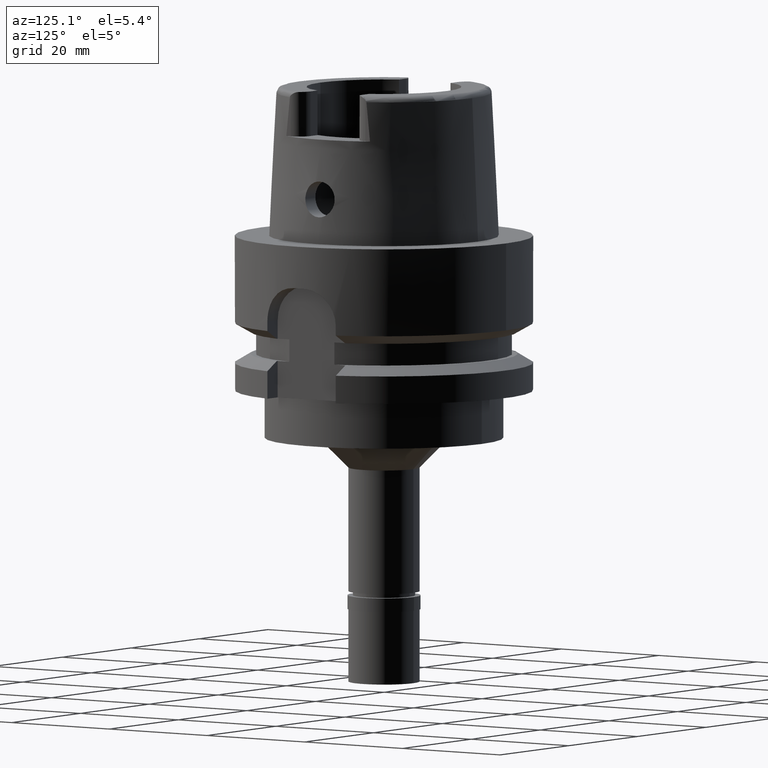
[diagram: clean part render]
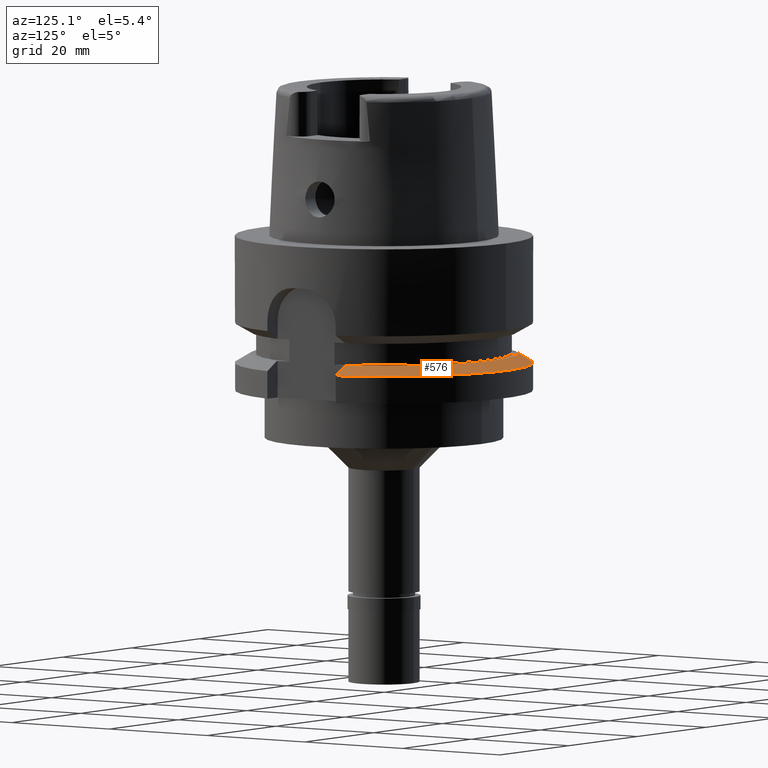
[diagram: same view with one face highlighted and labeled with its STEP entity id]
A machine part, auxiliary view. The second image highlights one B-rep face of the part: STEP entity #576.
In plain terms, the highlighted conical surface has half-angle 60 deg.
Its self-contained STEP definition (entity closure, byte-faithful):
#56 = ORIENTED_EDGE ( 'NONE', *, *, #3997, .F. ) ;
#168 = CARTESIAN_POINT ( 'NONE',  ( -15.49998696071000026, 16.16805732865999801, -19.87500000000000000 ) ) ;
#239 = DIRECTION ( 'NONE',  ( 0.0000000000000000000, 0.0000000000000000000, -1.000000000000000000 ) ) ;
#410 = CARTESIAN_POINT ( 'NONE',  ( 23.99999968298999775, 7.000001086876999956, -21.37750801618000196 ) ) ;
#576 = ADVANCED_FACE ( 'NONE', ( #2078 ), #806, .T. ) ;
#641 = CARTESIAN_POINT ( 'NONE',  ( 21.27562139474999725, 7.000000353478999848, -19.87500000000000000 ) ) ;
#689 = DIRECTION ( 'NONE',  ( 0.0000000000000000000, -1.000000000000000000, 0.0000000000000000000 ) ) ;
#806 = CONICAL_SURFACE ( 'NONE', #3083, 23.69879763209999979, 1.047197551196400456 ) ;
#978 = CARTESIAN_POINT ( 'NONE',  ( 23.99999968298999775, 7.000001086876999956, -21.37750801618000196 ) ) ;
#982 = CARTESIAN_POINT ( 'NONE',  ( 0.0000000000000000000, 0.0000000000000000000, -20.62624953738000144 ) ) ;
#985 = VERTEX_POINT ( 'NONE', #410 ) ;
#1018 = B_SPLINE_CURVE_WITH_KNOTS ( 'NONE', 3,
 ( #168, #4692, #1290, #4590 ),
 .UNSPECIFIED., .F., .F.,
 ( 4, 4 ),
 ( 0.0000000000000000000, 1.000000000000000000 ),
 .UNSPECIFIED. ) ;
#1123 = EDGE_LOOP ( 'NONE', ( #4885, #4242, #1793, #56 ) ) ;
#1290 = CARTESIAN_POINT ( 'NONE',  ( -15.50000000000000000, 18.40098518140533201, -20.82759900369239858 ) ) ;
#1361 = CARTESIAN_POINT ( 'NONE',  ( 23.04351312316537914, 7.000002172663049471, -20.84736059540415454 ) ) ;
#1572 = EDGE_CURVE ( 'NONE', #2498, #2184, #2923, .T. ) ;
#1793 = ORIENTED_EDGE ( 'NONE', *, *, #4021, .T. ) ;
#1801 = DIRECTION ( 'NONE',  ( 0.0000000000000000000, 0.0000000000000000000, -1.000000000000000000 ) ) ;
#1867 = CARTESIAN_POINT ( 'NONE',  ( 0.0000000000000000000, 0.0000000000000000000, -19.87500000000000000 ) ) ;
#1895 = CARTESIAN_POINT ( 'NONE',  ( -15.50001397709000095, 19.61503420108000029, -21.37755022036999719 ) ) ;
#2078 = FACE_OUTER_BOUND ( 'NONE', #1123, .T. ) ;
#2184 = VERTEX_POINT ( 'NONE', #641 ) ;
#2498 = VERTEX_POINT ( 'NONE', #4665 ) ;
#2730 = B_SPLINE_CURVE_WITH_KNOTS ( 'NONE', 3,
 ( #3972, #4761, #1361, #978 ),
 .UNSPECIFIED., .F., .F.,
 ( 4, 4 ),
 ( 0.0000000000000000000, 1.000000000000000000 ),
 .UNSPECIFIED. ) ;
#2923 = CIRCLE ( 'NONE', #4608, 22.39759526418999869 ) ;
#3083 = AXIS2_PLACEMENT_3D ( 'NONE', #982, #1801, #689 ) ;
#3384 = DIRECTION ( 'NONE',  ( 0.0000000000000000000, 0.0000000000000000000, -1.000000000000000000 ) ) ;
#3624 = CARTESIAN_POINT ( 'NONE',  ( 0.0000000000000000000, 0.0000000000000000000, -21.37749907476000288 ) ) ;
#3884 = EDGE_CURVE ( 'NONE', #2498, #4099, #1018, .T. ) ;
#3965 = CIRCLE ( 'NONE', #4114, 24.99999999999999645 ) ;
#3972 = CARTESIAN_POINT ( 'NONE',  ( 21.27562139474999725, 7.000000353478999848, -19.87500000000000000 ) ) ;
#3997 = EDGE_CURVE ( 'NONE', #4099, #985, #3965, .T. ) ;
#4016 = DIRECTION ( 'NONE',  ( -0.6200000000000721601, 0.7846018098372642413, 0.0000000000000000000 ) ) ;
#4021 = EDGE_CURVE ( 'NONE', #2184, #985, #2730, .T. ) ;
#4099 = VERTEX_POINT ( 'NONE', #1895 ) ;
#4114 = AXIS2_PLACEMENT_3D ( 'NONE', #3624, #239, #4016 ) ;
#4242 = ORIENTED_EDGE ( 'NONE', *, *, #1572, .T. ) ;
#4590 = CARTESIAN_POINT ( 'NONE',  ( -15.50001397709000095, 19.61503420108000029, -21.37755022036999719 ) ) ;
#4608 = AXIS2_PLACEMENT_3D ( 'NONE', #1867, #3384, #4808 ) ;
#4665 = CARTESIAN_POINT ( 'NONE',  ( -15.49998696071000026, 16.16805732865999801, -19.87500000000000000 ) ) ;
#4692 = CARTESIAN_POINT ( 'NONE',  ( -15.50000000000000000, 17.25199289059866459, -20.32674893023573404 ) ) ;
#4761 = CARTESIAN_POINT ( 'NONE',  ( 22.13540237080604811, 7.000000708149468842, -20.34652617146922182 ) ) ;
#4808 = DIRECTION ( 'NONE',  ( 0.0000000000000000000, 1.000000000000000000, 0.0000000000000000000 ) ) ;
#4885 = ORIENTED_EDGE ( 'NONE', *, *, #3884, .F. ) ;